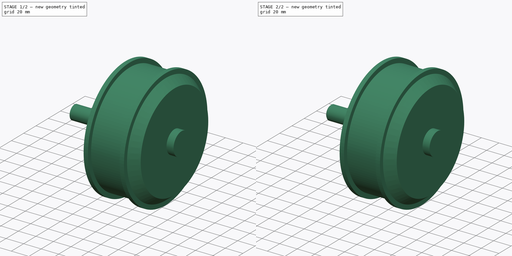
[diagram: build sequence overview — one tinted view per stage of 2, left to right]
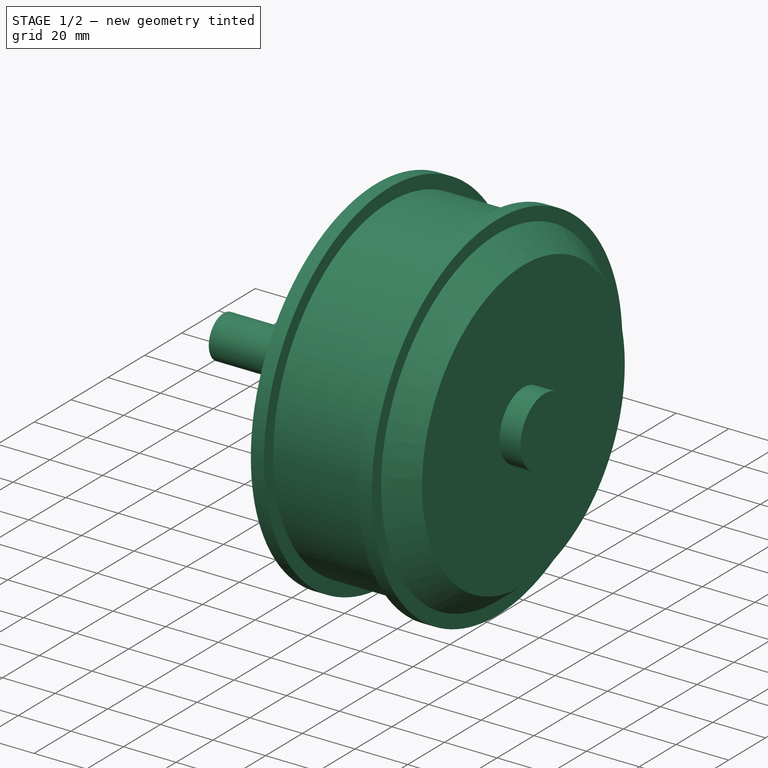
[diagram: stage 1 of 2 — iso view after this stage's code; geometry added in this stage tinted green]
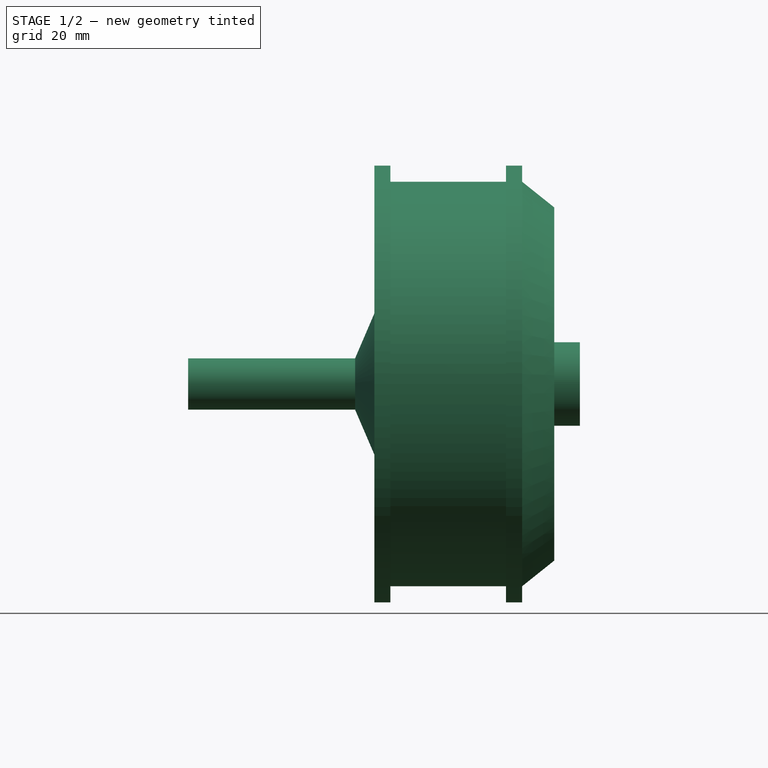
[diagram: stage 1 of 2 — front view after this stage's code; geometry added in this stage tinted green]
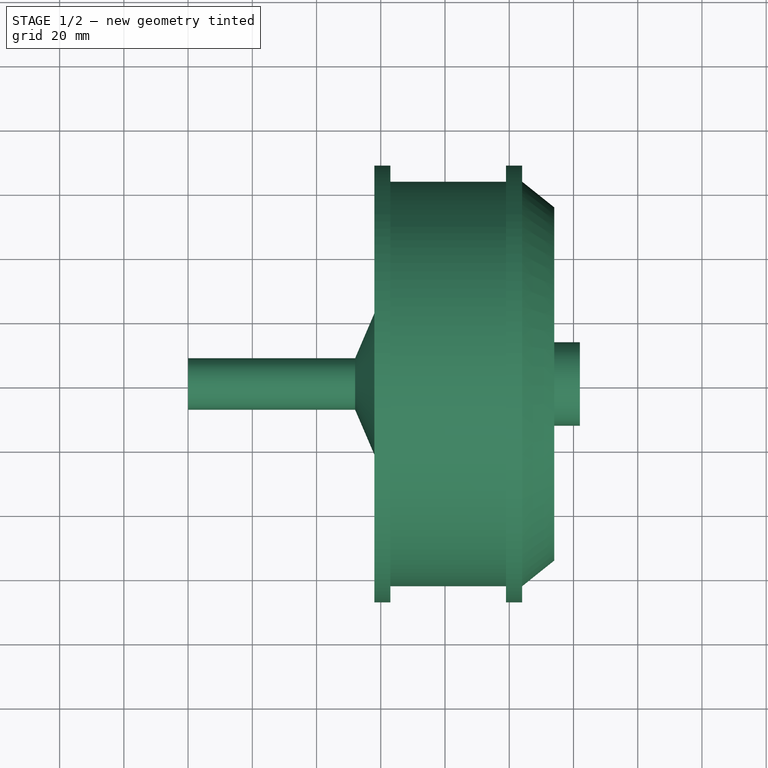
[diagram: stage 1 of 2 — top view after this stage's code; geometry added in this stage tinted green]
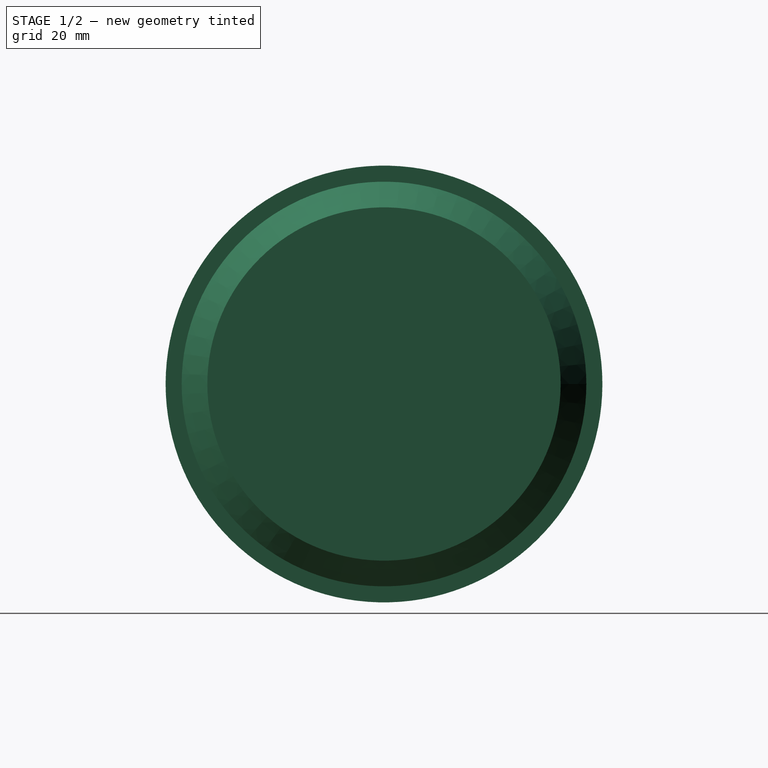
[diagram: stage 1 of 2 — right view after this stage's code; geometry added in this stage tinted green]
FCSTD DOCUMENT  (FreeCAD 0.19R24276 (Git))
Label: BLDC_2
License: All rights reserved
LicenseURL: http://en.wikipedia.org/wiki/All_rights_reserved
objects: Sketcher::SketchObject×3, PartDesign::Revolution×1, PartDesign::Chamfer×1, PartDesign::Body×1
note: 8 computed .brp shape members not serialized (recipe doc carries the construction recipe); baked Part::Feature solids carry a one-line shape summary decoded from their .brp

FEATURE [Sketcher::SketchObject] Sketch
  FullyConstrained = false
  MapMode = 5
  Support = -> [XY_Plane]
  sketch-geometry (18):
    g0: LineSegment StartX=63 StartY=63 StartZ=0 EndX=63 EndY=68 EndZ=0
    g1: LineSegment StartX=63 StartY=68 StartZ=0 EndX=58 EndY=68 EndZ=0
    g2: LineSegment StartX=58 StartY=68 StartZ=0 EndX=58 EndY=22 EndZ=0
    g3: LineSegment StartX=99 StartY=63 StartZ=0 EndX=63 EndY=63 EndZ=0
    g4: LineSegment StartX=104 StartY=63 StartZ=0 EndX=104 EndY=68 EndZ=0
    g5: LineSegment StartX=104 StartY=68 StartZ=0 EndX=99 EndY=68 EndZ=0
    g6: LineSegment StartX=99 StartY=68 StartZ=0 EndX=99 EndY=63 EndZ=0
    g7: LineSegment StartX=0 StartY=5 StartZ=0 EndX=0 EndY=8 EndZ=0
    g8: LineSegment StartX=52 StartY=8 StartZ=0 EndX=0 EndY=8 EndZ=0
    g9: LineSegment StartX=52 StartY=8 StartZ=0 EndX=58 EndY=22 EndZ=0
    g10: LineSegment StartX=114 StartY=13 StartZ=0 EndX=114 EndY=55 EndZ=0
    g11: LineSegment StartX=99 StartY=63 StartZ=0 EndX=63 EndY=63 EndZ=0
    g12: LineSegment StartX=104 StartY=63 StartZ=0 EndX=114 EndY=55 EndZ=0
    g13: LineSegment StartX=114 StartY=13 StartZ=0 EndX=122 EndY=13 EndZ=0
    g14: LineSegment StartX=122 StartY=13 StartZ=0 EndX=122 EndY=0 EndZ=0
    g15: LineSegment StartX=114 StartY=0 StartZ=0 EndX=114 EndY=5 EndZ=0
    g16: LineSegment StartX=114 StartY=5 StartZ=0 EndX=0 EndY=5 EndZ=0
    g17: LineSegment StartX=114 StartY=0 StartZ=0 EndX=122 EndY=0 EndZ=0
  constraints (32):
    c: Coincident(g0,g1)
    c: Coincident(g1,g2)
    c: Horizontal(g1)
    c: Vertical(g0)
    c: Vertical(g2)
    c: Horizontal(g3)
    c: Coincident(g4,g5)
    c: Coincident(g5,g6)
    c: Horizontal(g5)
    c: Vertical(g4)
    c: Vertical(g6)
    c: Horizontal(g8)
    c: Coincident(g7,g8)
    c: PointOnObject(g0,g3)
    c: PointOnObject(g6,g3)
    c: Horizontal(g11)
    c: Vertical(g10)
    c: Coincident(g12,g10)
    c: Coincident(g4,g12)
    c: PointOnObject(g11,g3)
    c: PointOnObject(g11,g0)
    c: Coincident(g13,g14)
    c: Horizontal(g13)
    c: Vertical(g14)
    c: Coincident(g13,g10)
    c: Coincident(g15,g16)
    c: Horizontal(g16)
    c: Vertical(g15)
    c: PointOnObject(g7,g16)
    c: Coincident(g17,g15)
    c: Coincident(g17,g14)
    c: Horizontal(g17)
FEATURE [PartDesign::Revolution] Revolution
  Angle = 360
  Axis = (1,0,0)
  Base = (0,0,0)
  Profile = -> Sketch
  ReferenceAxis = -> Sketch [H_Axis]
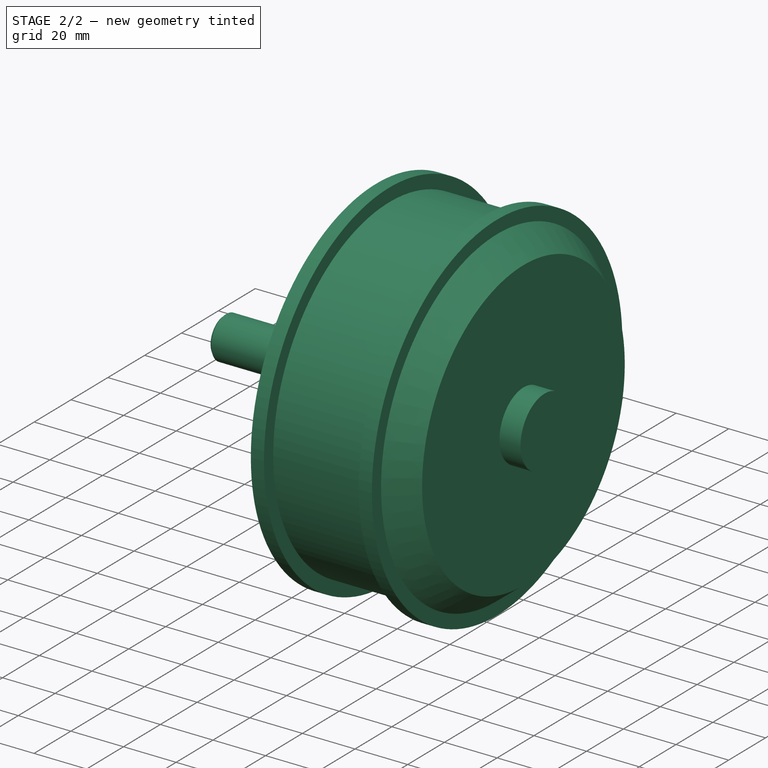
[diagram: stage 2 of 2 — iso view after this stage's code; geometry added in this stage tinted green]
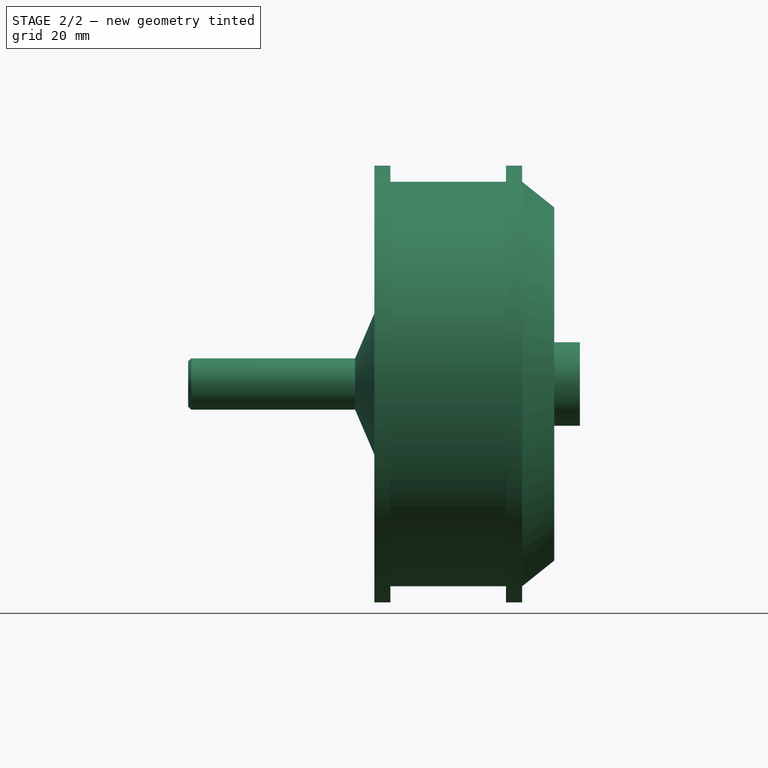
[diagram: stage 2 of 2 — front view after this stage's code; geometry added in this stage tinted green]
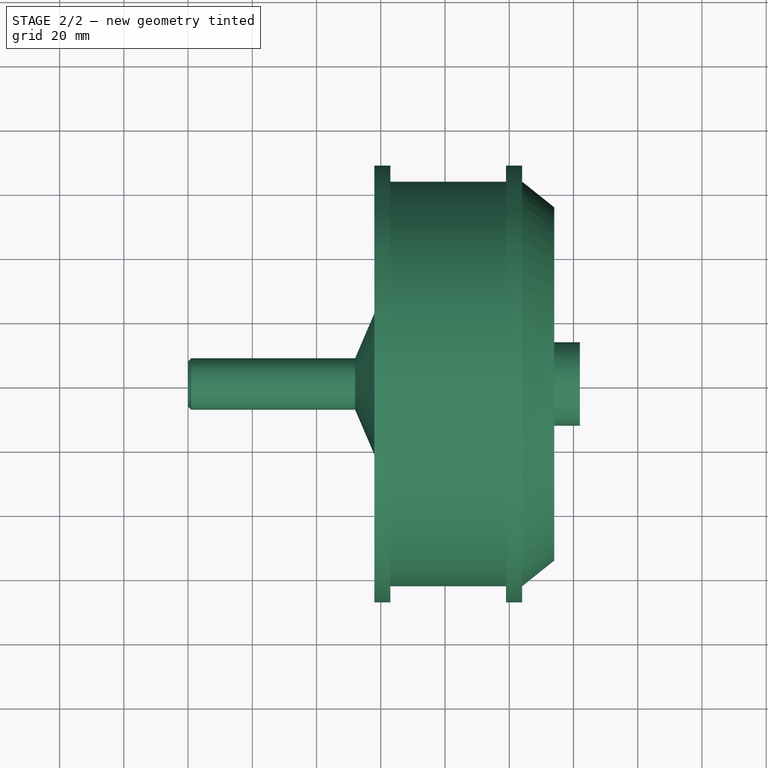
[diagram: stage 2 of 2 — top view after this stage's code; geometry added in this stage tinted green]
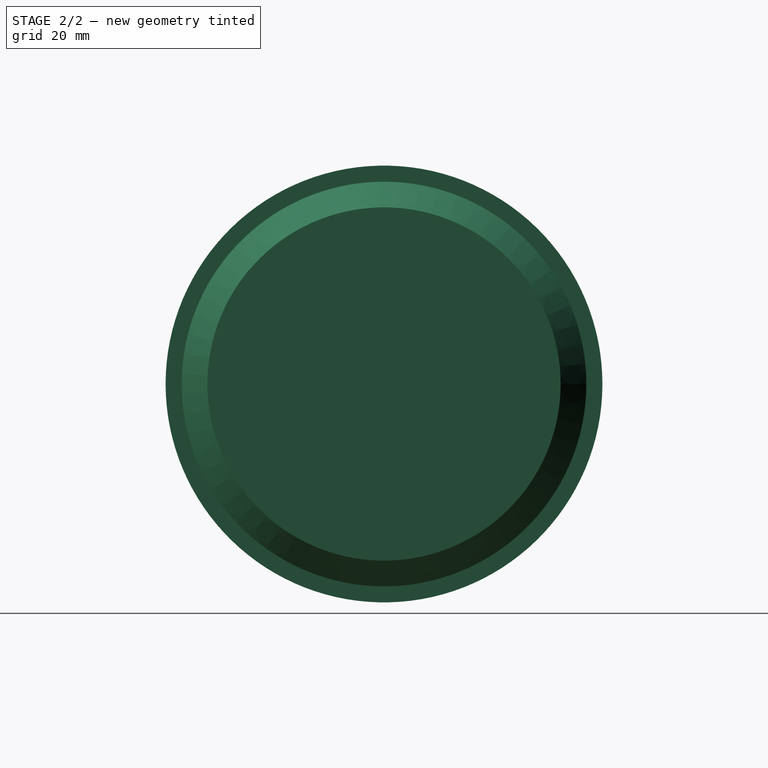
[diagram: stage 2 of 2 — right view after this stage's code; geometry added in this stage tinted green]
FEATURE [PartDesign::Chamfer] Chamfer
  Angle = 45
  Base = -> Revolution [Edge11]
  BaseFeature = -> Revolution
  ChamferType = 0
  FlipDirection = false
  Size = 1
  Size2 = 1
  SupportTransform = false
FEATURE [Sketcher::SketchObject] Sketch001
  FullyConstrained = false
  MapMode = 5
  Support = -> [XY_Plane]
  sketch-geometry (8):
    g0: LineSegment StartX=54 StartY=0 StartZ=0 EndX=54 EndY=8 EndZ=0
    g1: LineSegment StartX=54 StartY=8 StartZ=0 EndX=46 EndY=8 EndZ=0
    g2: LineSegment StartX=2 StartY=6 StartZ=0 EndX=2 EndY=8 EndZ=0
    g3: LineSegment StartX=2 StartY=8 StartZ=0 EndX=0 EndY=8 EndZ=0
    g4: LineSegment StartX=46 StartY=6 StartZ=0 EndX=2 EndY=6 EndZ=0
    g5: LineSegment StartX=0 StartY=8 StartZ=0 EndX=0 EndY=0 EndZ=0
    g6: LineSegment StartX=0 StartY=0 StartZ=0 EndX=54 EndY=0 EndZ=0
    g7: LineSegment StartX=46 StartY=8 StartZ=0 EndX=46 EndY=6 EndZ=0
  constraints (17):
    c: Coincident(g0,g1)
    c: Horizontal(g1)
    c: Vertical(g0)
    c: Coincident(g2,g3)
    c: Horizontal(g3)
    c: Vertical(g2)
    c: Horizontal(g4)
    c: Coincident(g4,g2)
    c: Coincident(g5,g3)
    c: Coincident(g5,g-1)
    c: Vertical(g5)
    c: Coincident(g6,g5)
    c: Coincident(g6,g0)
    c: Horizontal(g6)
    c: Coincident(g7,g1)
    c: Coincident(g7,g4)
    c: Vertical(g7)
FEATURE [Sketcher::SketchObject] Sketch002
  FullyConstrained = false
  MapMode = 5
  Placement = pos=(0,0,0) rot=(0.57735,-0.57735,-0.57735;2.0944rad)
  Support = -> [Chamfer]
  sketch-geometry (3):
    g0: ArcOfCircle CenterX=0 CenterY=0 CenterZ=0 NormalX=0 NormalY=0 NormalZ=1 AngleXU=0 Radius=8 StartAngle=2.29353 EndAngle=7.13125
    g1: LineSegment StartX=0 StartY=0 StartZ=0 EndX=0 EndY=6 EndZ=0
    g2: LineSegment StartX=5.2915 StartY=6 StartZ=0 EndX=-5.2915 EndY=6 EndZ=0
  constraints (8):
    c: Coincident(g0,g-1)
    c: Diameter(g0) = 16
    c: Coincident(g1,g0)
    c: PointOnObject(g1,g-2)
    c: DistanceY(g1,g1) = 6
    c: Horizontal(g2)
    c: Coincident(g0,g2)
    c: Coincident(g0,g2)
FEATURE [PartDesign::Body] Body
  Group = -> [Sketch,Revolution,Chamfer,Sketch001,Sketch002]
  Origin = -> Origin
  Tip = -> Chamfer
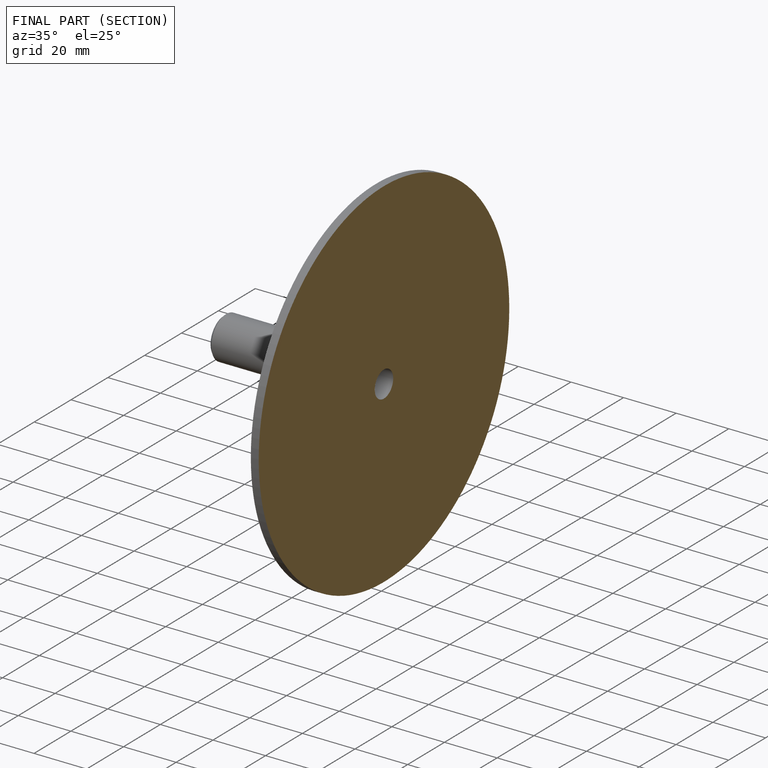
[diagram: finished part — half-section view (interior)]
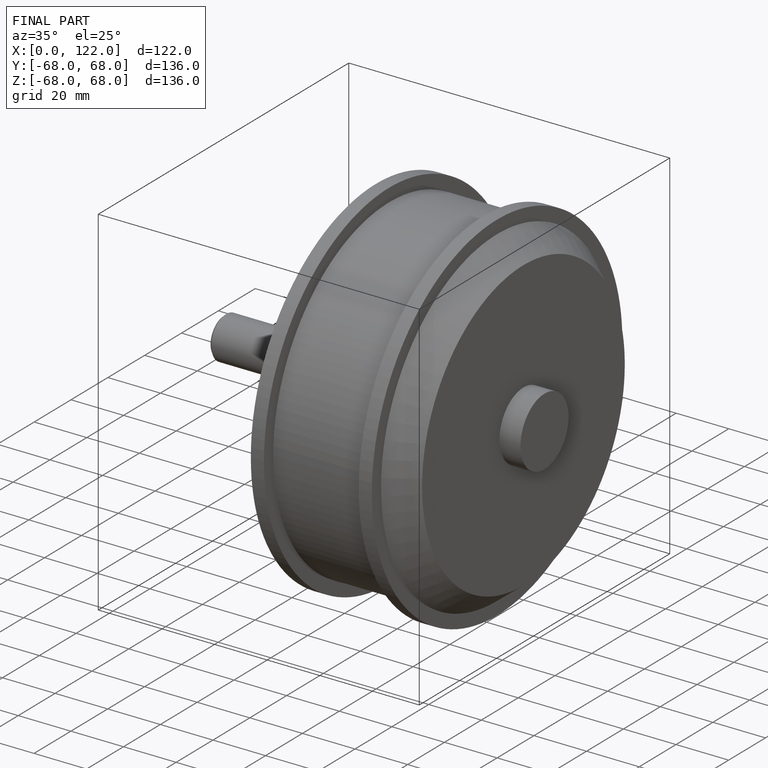
[diagram: finished part — iso view with bounding-box wireframe]
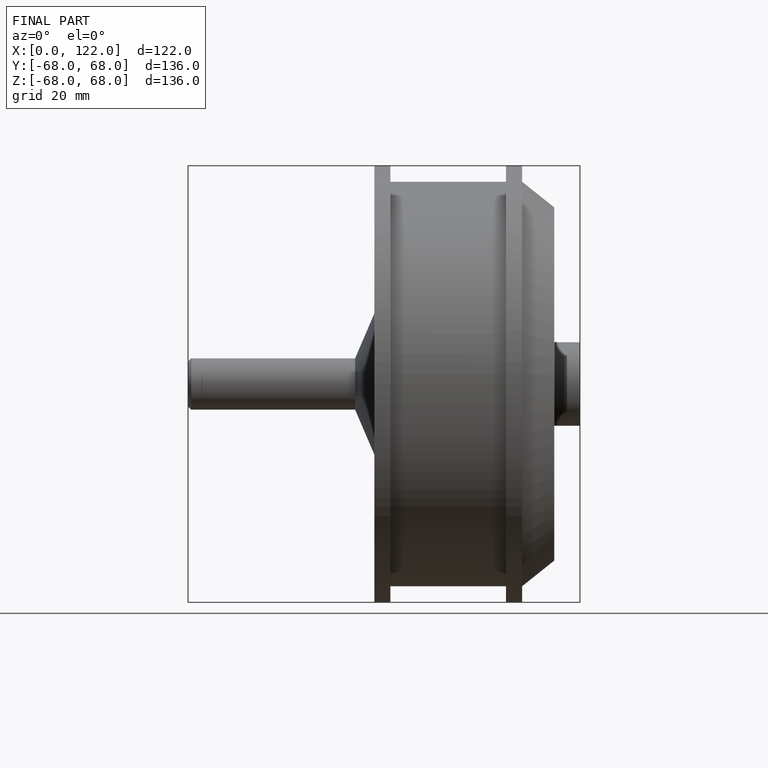
[diagram: finished part — front view with bounding-box wireframe]
